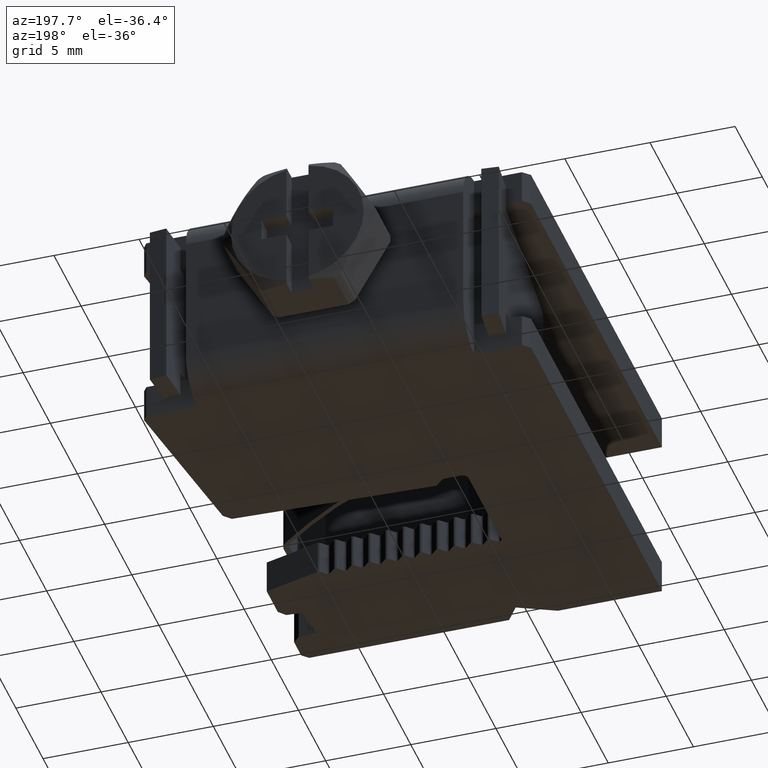
[diagram: clean part render]
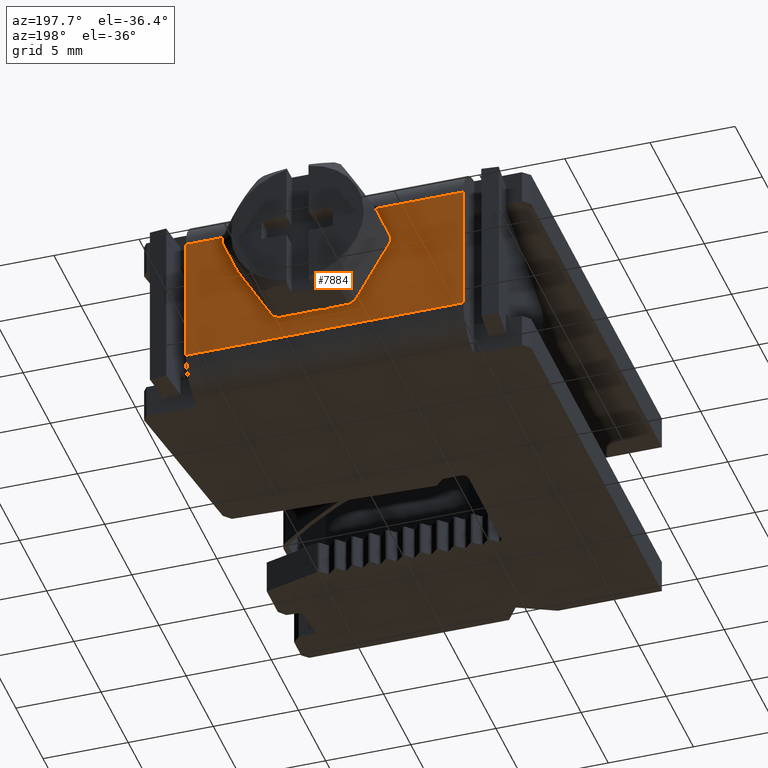
[diagram: same view with one face highlighted and labeled with its STEP entity id]
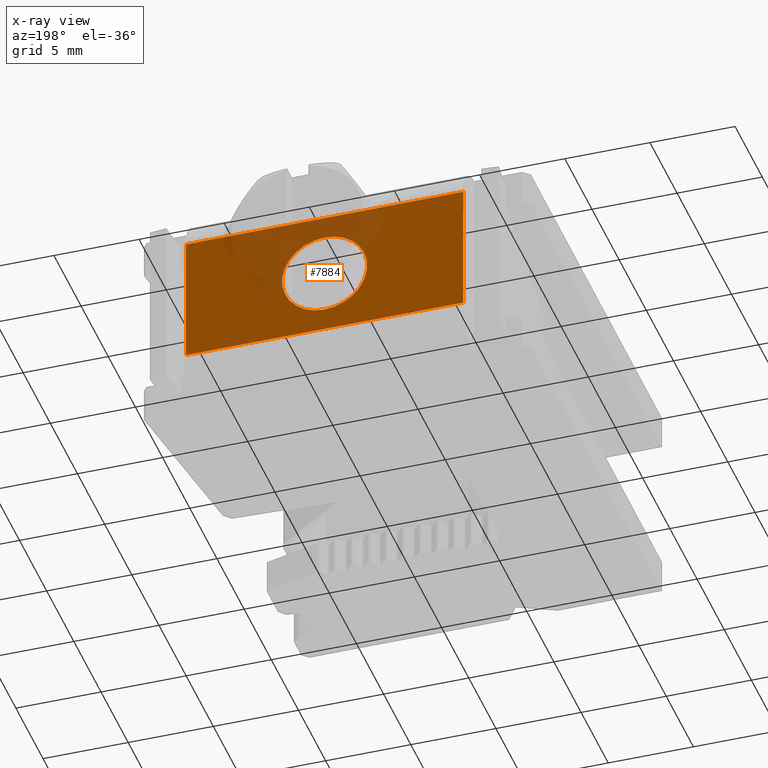
[diagram: x-ray of the same camera — body ghosted, the highlighted face saturated]
A machine part, auxiliary view. The second image highlights one B-rep face of the part: STEP entity #7884.
The next image is the same camera in x-ray: the body ghosted, the highlighted face saturated — about 22% of this face is hidden behind the body in this view.
In plain terms, the highlighted planar face has unit normal (0, 1, -0).
Its self-contained STEP definition (entity closure, byte-faithful):
#648 = CARTESIAN_POINT ( 'NONE',  ( 8.821278230129213000, 25.22833341090972000, 8.499999999999113600 ) ) ;
#668 = CARTESIAN_POINT ( 'NONE',  ( 8.821278230129213000, 25.22833341090972000, 3.500000000000886000 ) ) ;
#1508 = VECTOR ( 'NONE', #8492, 1000.000000000000000 ) ;
#1510 = VECTOR ( 'NONE', #9748, 1000.000000000000000 ) ;
#1521 = VECTOR ( 'NONE', #10612, 1000.000000000000000 ) ;
#1523 = VECTOR ( 'NONE', #10605, 1000.000000000000000 ) ;
#1678 = CIRCLE ( 'NONE', #1693, 2.499999999999114000 ) ;
#1693 = AXIS2_PLACEMENT_3D ( 'NONE', #10022, #10043, #10008 ) ;
#2085 = ORIENTED_EDGE ( 'NONE', *, *, #7996, .F. ) ;
#2232 = VERTEX_POINT ( 'NONE', #4366 ) ;
#2233 = VERTEX_POINT ( 'NONE', #4371 ) ;
#2242 = VERTEX_POINT ( 'NONE', #3467 ) ;
#2260 = VERTEX_POINT ( 'NONE', #3460 ) ;
#2320 = ORIENTED_EDGE ( 'NONE', *, *, #7976, .F. ) ;
#2327 = ORIENTED_EDGE ( 'NONE', *, *, #8141, .T. ) ;
#2452 = AXIS2_PLACEMENT_3D ( 'NONE', #8676, #8668, #8663 ) ;
#2961 = CIRCLE ( 'NONE', #2965, 2.499999999999114000 ) ;
#2965 = AXIS2_PLACEMENT_3D ( 'NONE', #8730, #8734, #8735 ) ;
#3460 = CARTESIAN_POINT ( 'NONE',  ( 0.6762782301292131800, 25.22833341090971600, 9.850000000000001400 ) ) ;
#3467 = CARTESIAN_POINT ( 'NONE',  ( 0.6762782301292138400, 25.22833341090971600, 2.149999999999999900 ) ) ;
#4366 = CARTESIAN_POINT ( 'NONE',  ( 16.96627823012921300, 25.22833341090971300, 2.149999999999999900 ) ) ;
#4371 = CARTESIAN_POINT ( 'NONE',  ( 16.96627823012921300, 25.22833341090971300, 9.850000000000001400 ) ) ;
#6438 = EDGE_LOOP ( 'NONE', ( #7042, #2327 ) ) ;
#6467 = EDGE_LOOP ( 'NONE', ( #2085, #7043, #2320, #7050 ) ) ;
#6625 = VERTEX_POINT ( 'NONE', #648 ) ;
#6673 = VERTEX_POINT ( 'NONE', #668 ) ;
#7042 = ORIENTED_EDGE ( 'NONE', *, *, #7904, .T. ) ;
#7043 = ORIENTED_EDGE ( 'NONE', *, *, #8014, .F. ) ;
#7050 = ORIENTED_EDGE ( 'NONE', *, *, #8017, .F. ) ;
#7884 = ADVANCED_FACE ( 'NONE', ( #8609, #8682 ), #8662, .T. ) ;
#7904 = EDGE_CURVE ( 'NONE', #6625, #6673, #2961, .T. ) ;
#7976 = EDGE_CURVE ( 'NONE', #2242, #2232, #9759, .T. ) ;
#7996 = EDGE_CURVE ( 'NONE', #2233, #2260, #8487, .T. ) ;
#8014 = EDGE_CURVE ( 'NONE', #2232, #2233, #10635, .T. ) ;
#8017 = EDGE_CURVE ( 'NONE', #2260, #2242, #10632, .T. ) ;
#8141 = EDGE_CURVE ( 'NONE', #6673, #6625, #1678, .T. ) ;
#8487 = LINE ( 'NONE', #8491, #1508 ) ;
#8491 = CARTESIAN_POINT ( 'NONE',  ( 0.6762782301292131800, 25.22833341090971300, 9.850000000000001400 ) ) ;
#8492 = DIRECTION ( 'NONE',  ( -1.000000000000000000, 2.426186679687842200E-016, -0.0000000000000000000 ) ) ;
#8609 = FACE_BOUND ( 'NONE', #6438, .T. ) ;
#8662 = PLANE ( 'NONE',  #2452 ) ;
#8663 = DIRECTION ( 'NONE',  ( -1.000000000000000000, 2.426186679687842200E-016, 0.0000000000000000000 ) ) ;
#8668 = DIRECTION ( 'NONE',  ( 2.426186679687842200E-016, 1.000000000000000000, -0.0000000000000000000 ) ) ;
#8676 = CARTESIAN_POINT ( 'NONE',  ( 0.6762782301292131800, 25.22833341090972000, -14.43918280236108100 ) ) ;
#8682 = FACE_OUTER_BOUND ( 'NONE', #6467, .T. ) ;
#8730 = CARTESIAN_POINT ( 'NONE',  ( 8.821278230129213000, 25.22833341090972000, 6.000000000000000000 ) ) ;
#8734 = DIRECTION ( 'NONE',  ( -0.0000000000000000000, -1.000000000000000000, -0.0000000000000000000 ) ) ;
#8735 = DIRECTION ( 'NONE',  ( 0.0000000000000000000, 0.0000000000000000000, 1.000000000000000000 ) ) ;
#9748 = DIRECTION ( 'NONE',  ( 1.000000000000000000, -2.426186679687842200E-016, -0.0000000000000000000 ) ) ;
#9759 = LINE ( 'NONE', #9769, #1510 ) ;
#9769 = CARTESIAN_POINT ( 'NONE',  ( 7.822759001598534200, 25.22833341090971300, 2.150000000000000400 ) ) ;
#10008 = DIRECTION ( 'NONE',  ( 0.0000000000000000000, 0.0000000000000000000, 1.000000000000000000 ) ) ;
#10022 = CARTESIAN_POINT ( 'NONE',  ( 8.821278230129213000, 25.22833341090972000, 6.000000000000000000 ) ) ;
#10043 = DIRECTION ( 'NONE',  ( -0.0000000000000000000, -1.000000000000000000, -0.0000000000000000000 ) ) ;
#10605 = DIRECTION ( 'NONE',  ( -0.0000000000000000000, -0.0000000000000000000, -1.000000000000000000 ) ) ;
#10612 = DIRECTION ( 'NONE',  ( -0.0000000000000000000, -0.0000000000000000000, 1.000000000000000000 ) ) ;
#10632 = LINE ( 'NONE', #10638, #1523 ) ;
#10635 = LINE ( 'NONE', #10639, #1521 ) ;
#10638 = CARTESIAN_POINT ( 'NONE',  ( 0.6762782301292131800, 25.22833341090972000, -14.43918280236108100 ) ) ;
#10639 = CARTESIAN_POINT ( 'NONE',  ( 16.96627823012921300, 25.22833341090971600, -14.43918280236108100 ) ) ;